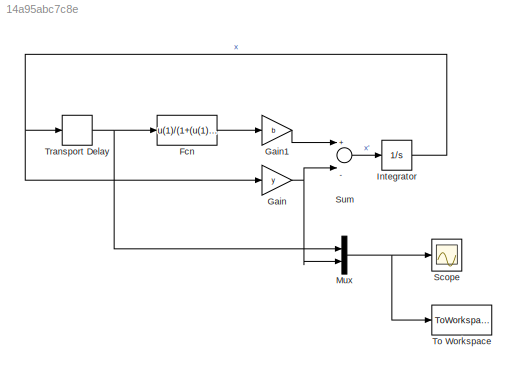
MODEL slx_14a95abc7c8e
KIND model
BLOCK [Fcn] Fcn
  Expr = u(1)/(1+(u(1)^n))
BLOCK [Gain] Gain
  Gain = y
  OutDataTypeStr = Inherit: Inherit via internal rule
  ParamDataTypeStr = Inherit: Inherit via internal rule
  SaturateOnIntegerOverflow = off
BLOCK [Gain] Gain1
  Gain = b
  OutDataTypeStr = Inherit: Inherit via internal rule
  ParamDataTypeStr = Inherit: Inherit via internal rule
  SaturateOnIntegerOverflow = off
BLOCK [Integrator] Integrator
  InitialCondition = param.ic
  Ports = [1, 1]
BLOCK [Mux] Mux
  DisplayOption = bar
  Inputs = 2
  Ports = [2, 1]
BLOCK [Scope] Scope
  Floating = off
  NumInputPorts = 1
  Ports = [1]
  ShowLegends = off
BLOCK [Sum] Sum
  InputSameDT = off
  Inputs = +|-
  OutDataTypeStr = Inherit: Inherit via internal rule
  Ports = [2, 1]
  SaturateOnIntegerOverflow = off
BLOCK [ToWorkspace] To Workspace
  FixptAsFi = on
  MaxDataPoints = inf
  Ports = [1]
  SampleTime = -1
  Save2DSignal = 3-D array (concatenate along third dimension)
  SaveFormat = Timeseries
  VariableName = simout
BLOCK [TransportDelay] Transport Delay
  BufferSize = 4096
  DelayTime = tau
  Ports = [1, 1]
LINE Fcn:1 -> Gain1:1
LINE Gain1:1 -> Sum:1
NET Gain:1 -> Mux:2, Sum:2
NET Integrator:1 -> Gain:1, Transport Delay:1
NET Mux:1 -> Scope:1, To Workspace:1
LINE Sum:1 -> Integrator:1
NET Transport Delay:1 -> Fcn:1, Mux:1
note: NET lines group one-source signal fan-out (src -> all destinations, sorted); 1:1 wires keep LINE
